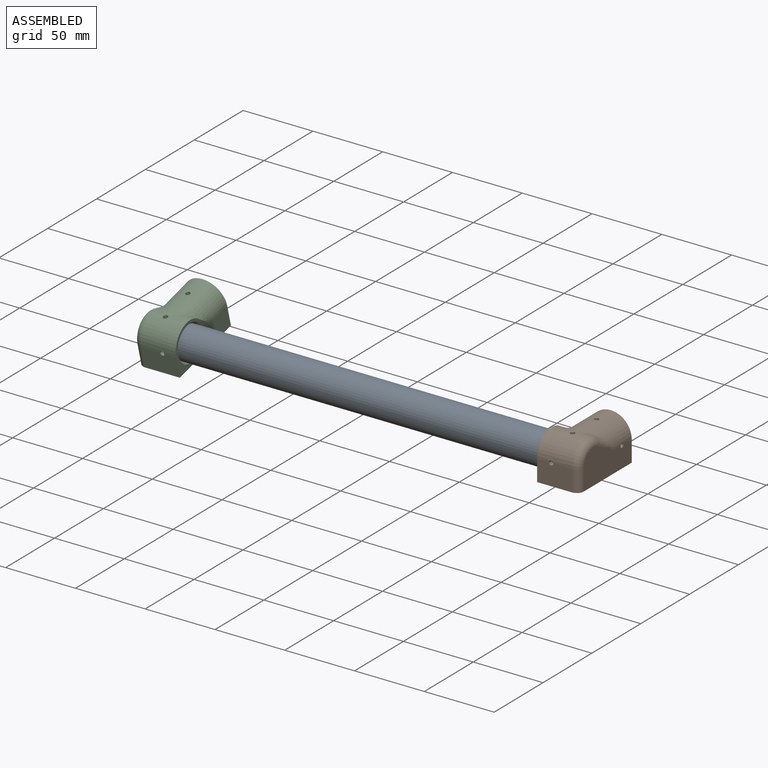
[diagram: assembled view]
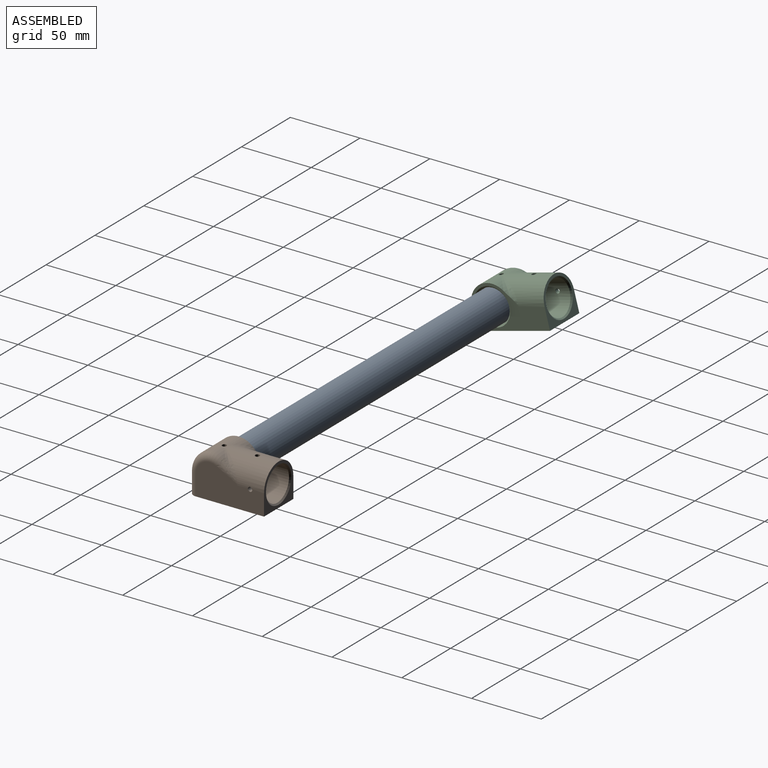
[diagram: assembled view, second angle]
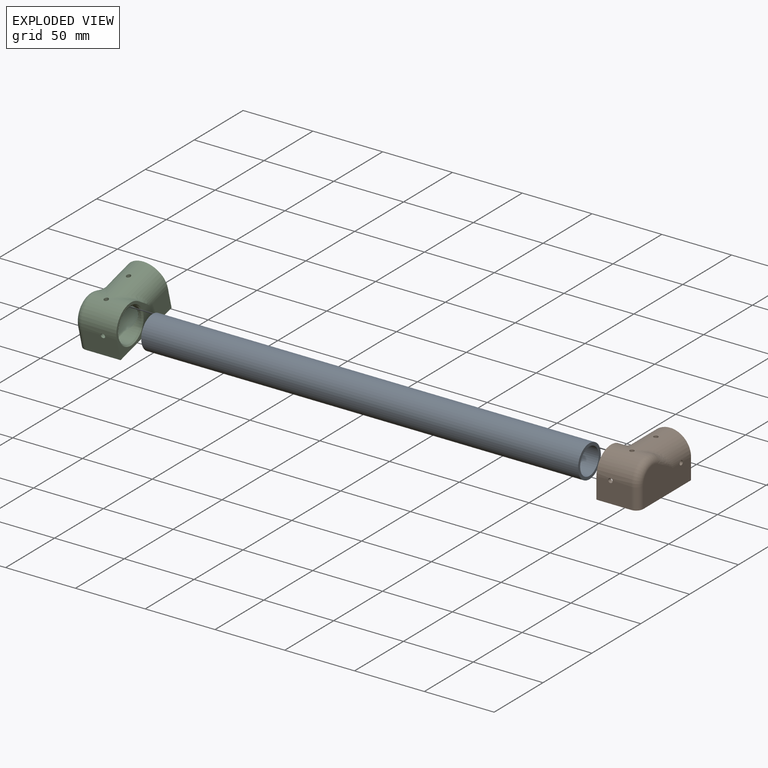
[diagram: exploded view]
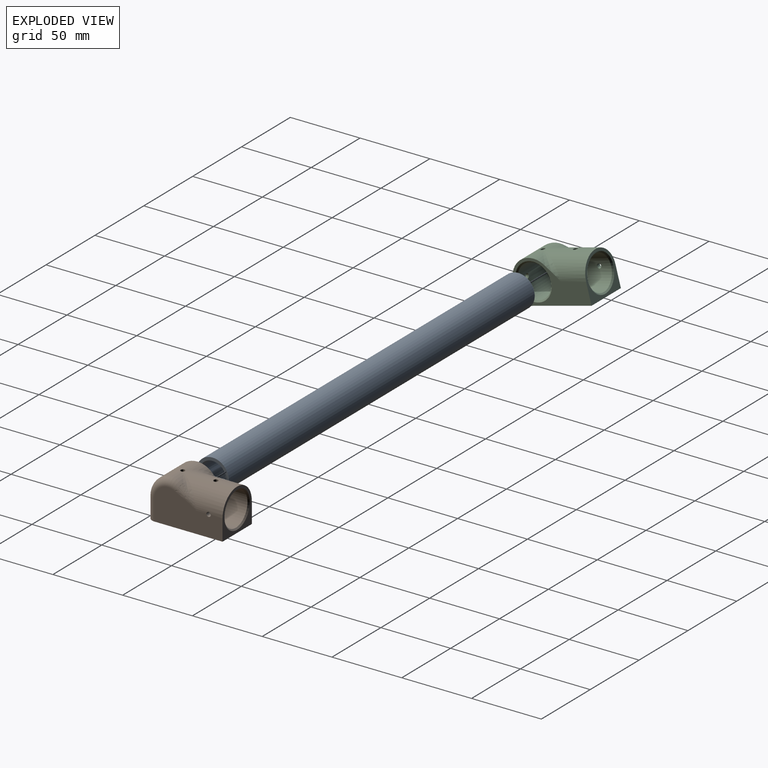
[diagram: exploded view, second angle]
ASSEMBLY  parts=3 mates=2
PART A: 4 faces, bbox 23.4x23.4x313 mm
  f0: plane 23.4x23.4mm, normal (0,0,1), area 145mm2, adj f2,f3
  f1: plane 23.4x23.4mm, normal (0,0,-1), area 145mm2, adj f2,f3
  f2: cylinder r=11.7mm len=313mm, axis (0,0,-1), area 23009.7mm2, adj f0,f1
  f3: cylinder r=9.53mm len=313mm, axis (0,0,-1), area 18732.2mm2, adj f0,f1
PART B: 22 faces, bbox 55.2x31.2x40 mm
  f0: cylinder r=15mm len=37.73mm, axis (1,0,0), area 1224.7mm2, adj f4,f5,f8,f9,f10,f19,f20,f21
  f1: cylinder r=12mm len=37.1mm, axis (1,0,0), area 2271.2mm2, adj f3,f12,f14,f19,f20,f21
  f2: cylinder r=15mm len=26.25mm, axis (0,0,1), area 713mm2, adj f4,f5,f6,f8,f16,f18,f20
  f3: cylinder r=12mm len=26mm, axis (0,0,-1), area 1371.2mm2, adj f1,f11,f12,f13,f18,f20
  f4: bspline ~19.05x19.05mm, area 58.4mm2, adj f0,f2,f15,f20
  f5: bspline ~20x20mm, area 86.9mm2, adj f0,f2,f8,f20
  f6: plane 25x15mm, normal (-1,0,0), area 371mm2, adj f2,f7,f8,f17,f18
  f7: plane 54x30mm, normal (0,-1,0), area 1614.6mm2, adj f6,f8,f9,f10,f17
  f8: plane 54x30mm, normal (0,0,-1), area 653.3mm2, adj f0,f2,f5,f6,f7,f10,f13
  f9: plane 49x25mm, normal (0,0,1), area 927.7mm2, adj f0,f7,f10,f15,f16,f17,f19
  f10: plane 30x30mm, normal (1,0,0), area 272.5mm2, adj f0,f7,f8,f9,f14
  f11: plane 24x24mm, normal (0,0,-1), area 452.4mm2, adj f3
  f12: plane 1.8x0.03mm, normal (1,0,0), area 0mm2, adj f1,f3
  f13: cone r=12mm half-angle=45deg, axis (0,0,-1), area 111.1mm2, adj f3,f8
  f14: cone r=12mm half-angle=45deg, axis (1,0,0), area 111.1mm2, adj f1,f10
  f15: bspline ~17.04x14.79mm, area 73.6mm2, adj f4,f9,f16
  f16: torus R=10mm, axis (0,0,-1), area 216.9mm2, adj f2,f9,f15,f17
  f17: cylinder r=5mm len=15mm, axis (0,-1,0), area 117.8mm2, adj f6,f7,f9,f16
  f18: cylinder r=1.59mm len=3.18mm, axis (-1,0,0), area 31mm2, adj f2,f3,f6
  f19: cylinder r=1.59mm len=3.18mm, axis (0,0,1), area 29.9mm2, adj f0,f1,f9
  f20: cylinder r=1.59mm len=3.18mm, axis (0,-1,0), area 30.1mm2, adj f0,f1,f2,f3,f4,f5
  f21: cylinder r=1.59mm len=3.18mm, axis (0,-1,0), area 30.2mm2, adj f0,f1
PART C: 22 faces, bbox 55.2x31.2x40 mm
  f0: cylinder r=15mm len=37.73mm, axis (1,0,0), area 1224.7mm2, adj f4,f5,f8,f9,f10,f19,f20,f21
  f1: cylinder r=12mm len=37.1mm, axis (1,0,0), area 2271.2mm2, adj f3,f12,f14,f19,f20,f21
  f2: cylinder r=15mm len=26.25mm, axis (0,0,-1), area 713mm2, adj f4,f5,f6,f8,f16,f18,f20
  f3: cylinder r=12mm len=26mm, axis (0,0,1), area 1371.3mm2, adj f1,f11,f12,f13,f18,f20
  f4: bspline ~20x20mm, area 58.4mm2, adj f0,f2,f15,f20
  f5: bspline ~19.05x19.05mm, area 86.9mm2, adj f0,f2,f8,f20
  f6: plane 25x15mm, normal (-1,0,0), area 371mm2, adj f2,f7,f8,f17,f18
  f7: plane 54x30mm, normal (0,-1,0), area 1614.6mm2, adj f6,f8,f9,f10,f17
  f8: plane 54x30mm, normal (0,0,1), area 653.3mm2, adj f0,f2,f5,f6,f7,f10,f13
  f9: plane 49x25mm, normal (0,0,-1), area 927.7mm2, adj f0,f7,f10,f15,f16,f17,f19
  f10: plane 30x30mm, normal (1,0,0), area 272.5mm2, adj f0,f7,f8,f9,f14
  f11: plane 24x24mm, normal (0,0,1), area 452.4mm2, adj f3
  f12: plane 1.8x0.03mm, normal (1,0,0), area 0mm2, adj f1,f3
  f13: cone r=12mm half-angle=45deg, axis (0,0,1), area 111.1mm2, adj f3,f8
  f14: cone r=12mm half-angle=45deg, axis (1,0,0), area 111.1mm2, adj f1,f10
  f15: bspline ~17.04x14.79mm, area 73.6mm2, adj f4,f9,f16
  f16: torus R=10mm, axis (0,0,1), area 216.9mm2, adj f2,f9,f15,f17
  f17: cylinder r=5mm len=15mm, axis (0,-1,0), area 117.8mm2, adj f6,f7,f9,f16
  f18: cylinder r=1.59mm len=3.18mm, axis (-1,0,0), area 31mm2, adj f2,f3,f6
  f19: cylinder r=1.59mm len=3.18mm, axis (0,0,-1), area 29.9mm2, adj f0,f1,f9
  f20: cylinder r=1.59mm len=3.18mm, axis (0,-1,0), area 30.1mm2, adj f0,f1,f2,f3,f4,f5
  f21: cylinder r=1.59mm len=3.18mm, axis (0,-1,0), area 30.2mm2, adj f0,f1
PLACE A rot(axis=(-0.52,0.68,-0.52),111.8deg) t=(-388.39,-23.37,345.1)mm
PLACE B rot(axis=(0.58,0.58,0.58),120deg) t=(-132.39,-23.37,345.1)mm
PLACE C rot(axis=(0.62,0.48,0.62),129deg) t=(-391.39,-23.37,345.1)mm
MATE revolute B.f2 <-> A.f2  axis (-1,0,0) through (-75.39,-23.37,345.1)mm
MATE revolute C.f2 <-> A.f2  axis (1,0,0) through (-388.39,-23.37,345.1)mm
